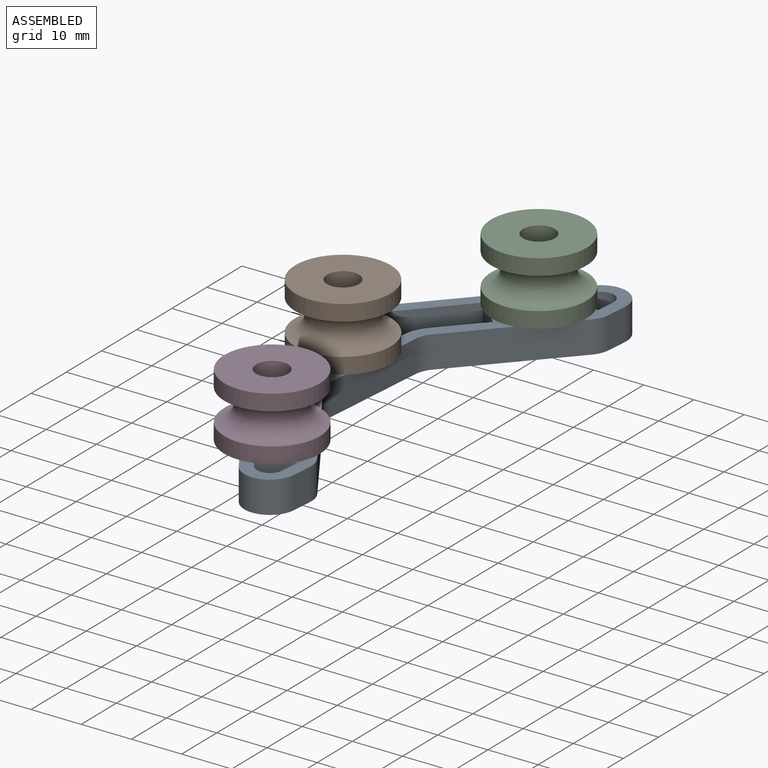
[diagram: assembled view]
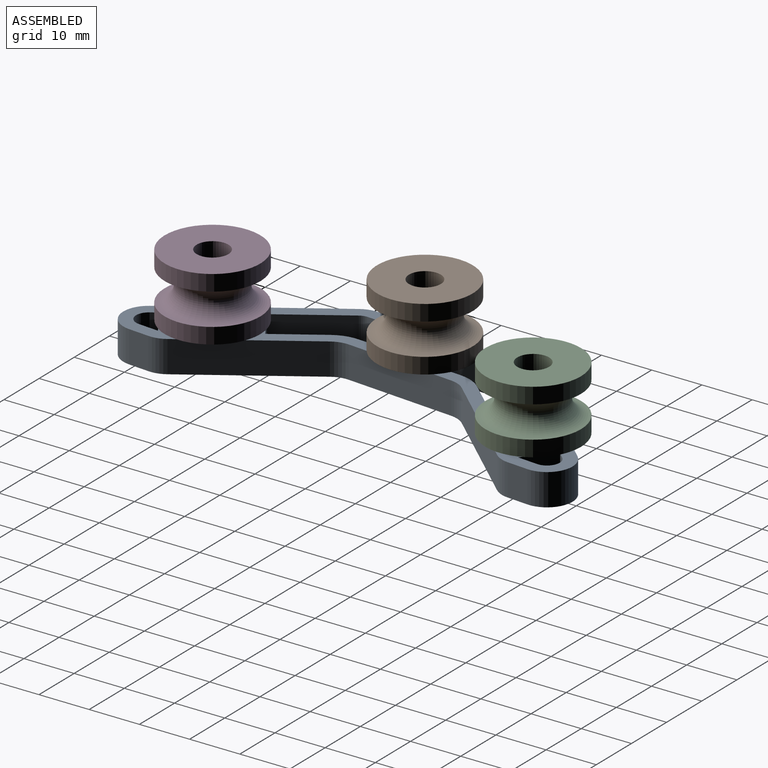
[diagram: assembled view, second angle]
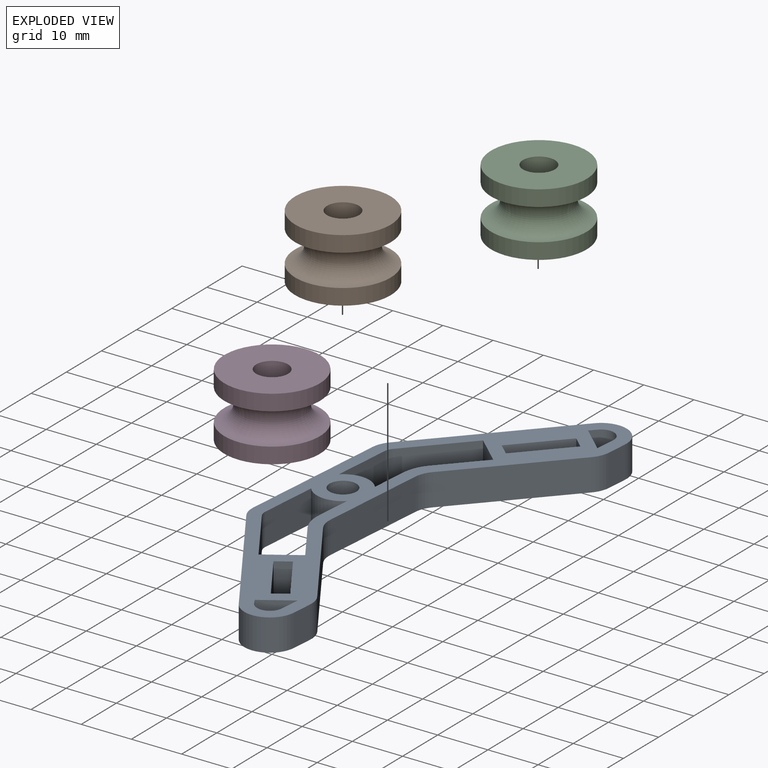
[diagram: exploded view]
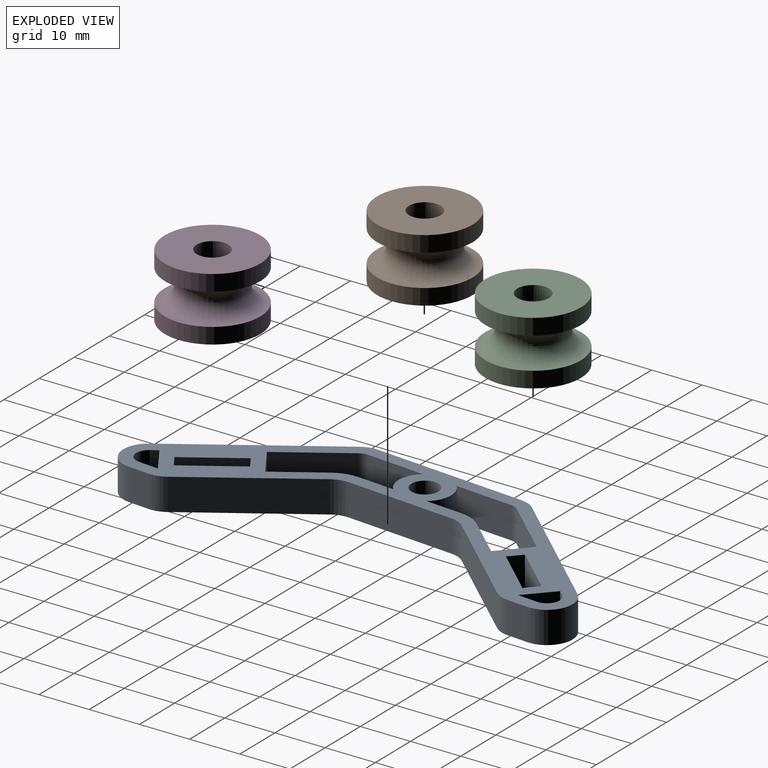
[diagram: exploded view, second angle]
ASSEMBLY  parts=4 mates=7
PART A: 51 faces, bbox 94.7x31.1x6.4 mm
  f0: plane 94.67x31.06mm, normal (0,0,1), area 793.7mm2, adj f2,f3,f4,f5,f6,f7,f8,f9
  f1: plane 94.67x31.06mm, normal (0,0,-1), area 793.7mm2, adj f2,f3,f4,f5,f6,f7,f8,f9
  f2: plane 9.86x7.62mm, normal (-0.61,0.79,0), area 79.1mm2, adj f0,f1,f3,f18
  f3: plane 6.35x2.51mm, normal (0.79,0.61,0), area 20.2mm2, adj f0,f1,f2,f4
  f4: plane 9.86x7.62mm, normal (0.61,-0.79,0), area 79.1mm2, adj f0,f1,f3,f18
  f5: plane 21.02x16.24mm, normal (0.61,0.79,0), area 168.7mm2, adj f0,f1,f19,f26
  f6: plane 6.35x4.15mm, normal (0,1,0), area 26.4mm2, adj f0,f1,f19,f20
  f7: plane 27.05x20.9mm, normal (-0.61,-0.79,0), area 217.1mm2, adj f0,f1,f20,f21
  f8: plane 30.41x6.35mm, normal (0,-1,0), area 193.1mm2, adj f0,f1,f21,f22
  f9: plane 27.05x20.9mm, normal (0.61,-0.79,0), area 217.1mm2, adj f0,f1,f22,f23
  f10: plane 6.35x4.15mm, normal (0,1,0), area 26.4mm2, adj f0,f1,f23,f24
  f11: plane 21.02x16.24mm, normal (-0.61,0.79,0), area 168.7mm2, adj f0,f1,f24,f25
  f12: plane 9.86x7.62mm, normal (0.61,0.79,0), area 79.1mm2, adj f0,f1,f13,f17
  f13: plane 6.35x2.51mm, normal (0.79,-0.61,0), area 20.2mm2, adj f0,f1,f12,f14
  f14: plane 9.86x7.62mm, normal (-0.61,-0.79,0), area 79.1mm2, adj f0,f1,f13,f17
  f15: plane 21.74x6.35mm, normal (0,1,0), area 138.1mm2, adj f0,f1,f25,f26
  f16: cylinder r=2.68mm len=6.35mm, axis (0,0,-1), area 107mm2, adj f0,f1
  f17: plane 6.35x2.51mm, normal (-0.79,0.61,0), area 20.2mm2, adj f0,f1,f12,f14
  f18: plane 6.35x2.51mm, normal (-0.79,-0.61,0), area 20.2mm2, adj f0,f1,f2,f4
  f19: cylinder r=5.08mm len=6.35mm, axis (0,0,-1), area 21.2mm2, adj f0,f1,f5,f6
  f20: cylinder r=5.08mm len=9.1mm, axis (0,0,1), area 80.1mm2, adj f0,f1,f6,f7
  f21: cylinder r=5.08mm len=6.35mm, axis (0,0,-1), area 21.2mm2, adj f0,f1,f7,f8
  f22: cylinder r=5.08mm len=6.35mm, axis (0,0,1), area 21.2mm2, adj f0,f1,f8,f9
  f23: cylinder r=5.08mm len=9.1mm, axis (0,0,1), area 80.1mm2, adj f0,f1,f9,f10
  f24: cylinder r=5.08mm len=6.35mm, axis (0,0,-1), area 21.2mm2, adj f0,f1,f10,f11
  f25: cylinder r=5.08mm len=6.35mm, axis (0,0,-1), area 21.2mm2, adj f0,f1,f11,f15
  f26: cylinder r=5.08mm len=6.35mm, axis (0,0,1), area 21.2mm2, adj f0,f1,f5,f15
  f27: cylinder r=2.54mm len=6.35mm, axis (0,0,1), area 40.1mm2, adj f0,f1,f29,f30
  f28: plane 6.35x5.55mm, normal (0.79,0.61,0), area 44.5mm2, adj f0,f1,f29,f30
  f29: plane 6.35x4.02mm, normal (0,-1,0), area 25.5mm2, adj f0,f1,f27,f28
  f30: plane 6.35x1.29mm, normal (-0.61,0.79,0), area 10.3mm2, adj f0,f1,f27,f28
  f31: cylinder r=2.54mm len=6.35mm, axis (0,0,1), area 40.1mm2, adj f0,f1,f33,f34
  f32: plane 6.35x5.55mm, normal (-0.79,0.61,0), area 44.5mm2, adj f0,f1,f33,f34
  f33: plane 6.35x4.02mm, normal (0,-1,0), area 25.5mm2, adj f0,f1,f31,f32
  f34: plane 6.35x1.29mm, normal (0.61,0.79,0), area 10.3mm2, adj f0,f1,f31,f32
  f35: cylinder r=7.62mm len=6.35mm, axis (0,0,1), area 31.8mm2, adj f0,f1,f39,f41
  f36: cylinder r=2.54mm len=6.35mm, axis (0,0,-1), area 10.6mm2, adj f0,f1,f40,f42
  f37: plane 6.35x6.03mm, normal (0.79,-0.61,0), area 48.4mm2, adj f0,f1,f41,f42
  f38: cylinder r=5.22mm len=7.62mm, axis (0,0,-1), area 54.2mm2, adj f0,f1,f39,f40
  f39: plane 7.3x6.35mm, normal (0,-1,0), area 46.3mm2, adj f0,f1,f35,f38
  f40: plane 11.63x6.35mm, normal (0,1,0), area 73.9mm2, adj f0,f1,f36,f38
  f41: plane 8.45x6.53mm, normal (-0.61,-0.79,0), area 67.8mm2, adj f0,f1,f35,f37
  f42: plane 11.88x9.18mm, normal (0.61,0.79,0), area 95.3mm2, adj f0,f1,f36,f37
  f43: plane 11.88x9.18mm, normal (-0.61,0.79,0), area 95.3mm2, adj f0,f1,f47,f49
  f44: cylinder r=5.22mm len=7.62mm, axis (0,0,-1), area 54.2mm2, adj f0,f1,f45,f46
  f45: plane 7.3x6.35mm, normal (0,-1,0), area 46.3mm2, adj f0,f1,f44,f50
  f46: plane 11.63x6.35mm, normal (0,1,0), area 73.9mm2, adj f0,f1,f44,f49
  f47: plane 6.35x6.03mm, normal (-0.79,-0.61,0), area 48.4mm2, adj f0,f1,f43,f48
  f48: plane 8.45x6.53mm, normal (0.61,-0.79,0), area 67.8mm2, adj f0,f1,f47,f50
  f49: cylinder r=2.54mm len=6.35mm, axis (0,0,1), area 10.6mm2, adj f0,f1,f43,f46
  f50: cylinder r=7.62mm len=6.35mm, axis (0,0,-1), area 31.8mm2, adj f0,f1,f45,f48
PART B: 6 faces, bbox 25.5x25.5x12.7 mm
  f0: cylinder r=9.53mm len=19.05mm, axis (0,0,-1), area 190mm2, adj f3,f5
  f1: cylinder r=9.53mm len=19.05mm, axis (0,0,-1), area 190mm2, adj f4,f5
  f2: cylinder r=3.17mm len=12.7mm, axis (0,0,-1), area 253.4mm2, adj f3,f4
  f3: plane 19.05x19.05mm, normal (0,0,1), area 253.4mm2, adj f0,f2
  f4: plane 19.05x19.05mm, normal (0,0,-1), area 253.4mm2, adj f1,f2
  f5: torus R=9.53mm, axis (0,0,1), area 470.3mm2, adj f0,f1
PART C: same geometry as B
PART D: same geometry as B
PLACE A rot(axis=(0,0,-1),94.8deg) t=(-54.03,-4,-17.39)mm
PLACE B rot(axis=(0,0,-1),94.8deg) t=(-47.7,-4.53,-11.04)mm
PLACE C rot(axis=(0,0,-1),137.4deg) t=(-31.65,28.28,-11.04)mm
PLACE D rot(axis=(0,0,1),153.9deg) t=(-37.3,-39.54,-11.04)mm
MATE slider B.f0 <-> A.f16  axis (0,0,-1) through (-47.7,-4.53,-11.04)mm
MATE pin_slot A.f0 <-> C.f0  axis (0,0,1) through (-31.65,28.28,-11.04)mm
MATE revolute D.f2 <-> A.f0  axis (0,0,-1) through (-37.3,-39.54,-11.04)mm
MATE pin_slot D.f2 <-> A.f0  axis (0,0,-1) through (-37.3,-39.54,-11.04)mm
MATE revolute C.f2 <-> A.f0  axis (0,0,-1) through (-31.65,28.28,-11.04)mm
MATE revolute A.f16 <-> B.f0  axis (0,0,1) through (-47.7,-4.53,-11.04)mm
MATE cylindrical A.f16 <-> B.f0  axis (0,0,1) through (-47.7,-4.53,-11.04)mm
